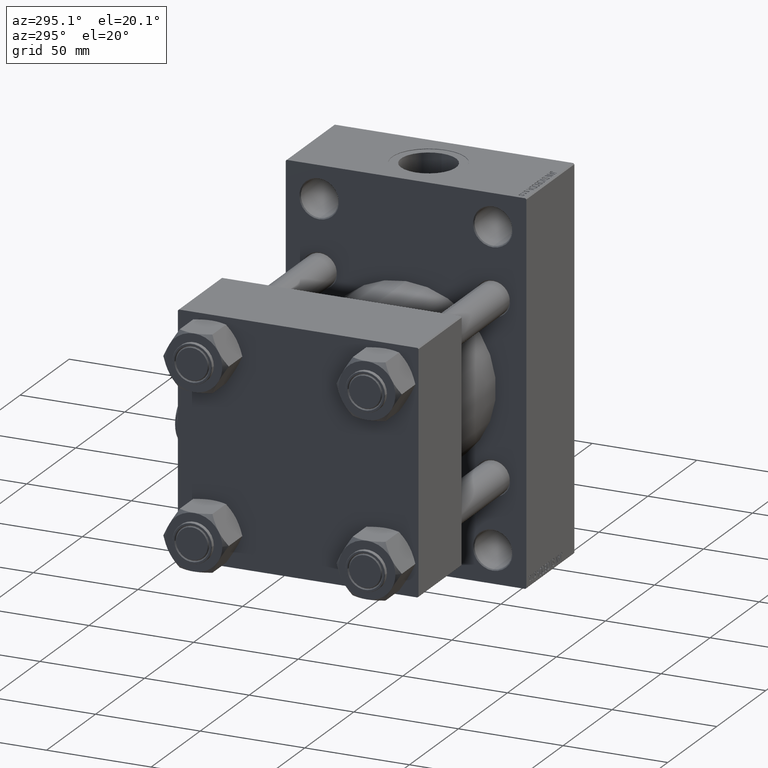
[diagram: clean part render]
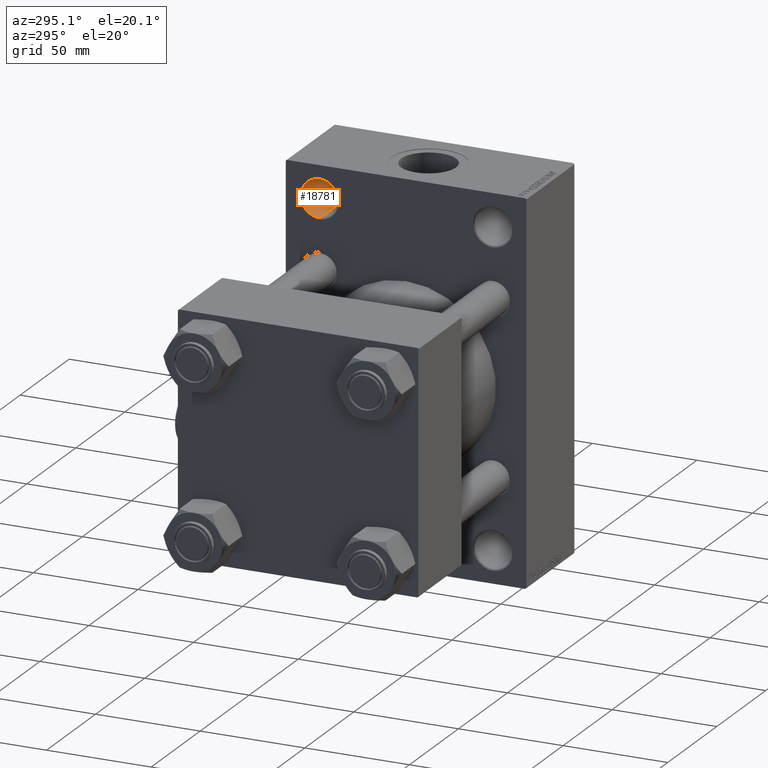
[diagram: same view with one face highlighted and labeled with its STEP entity id]
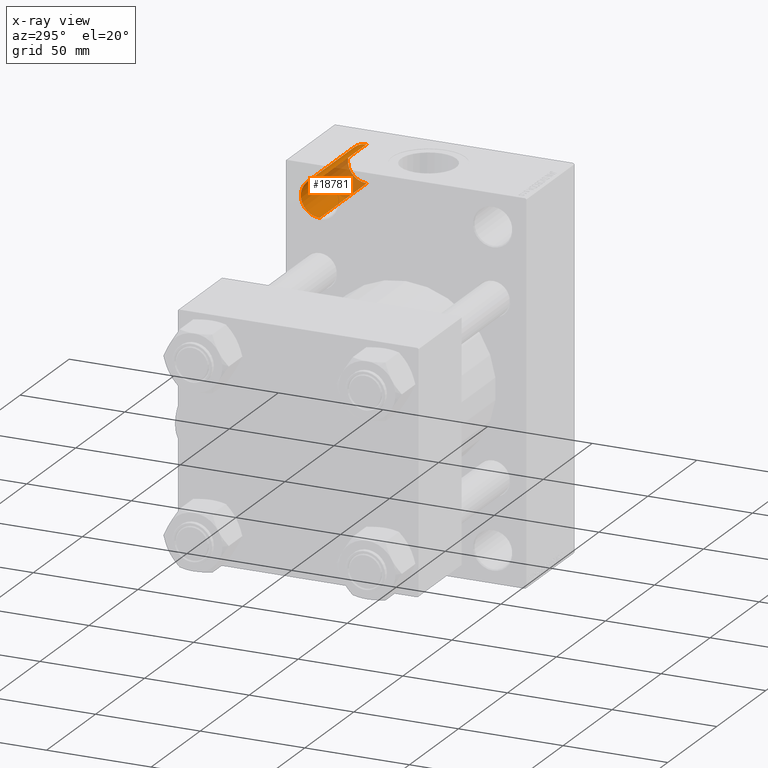
[diagram: x-ray of the same camera — body ghosted, the highlighted face saturated]
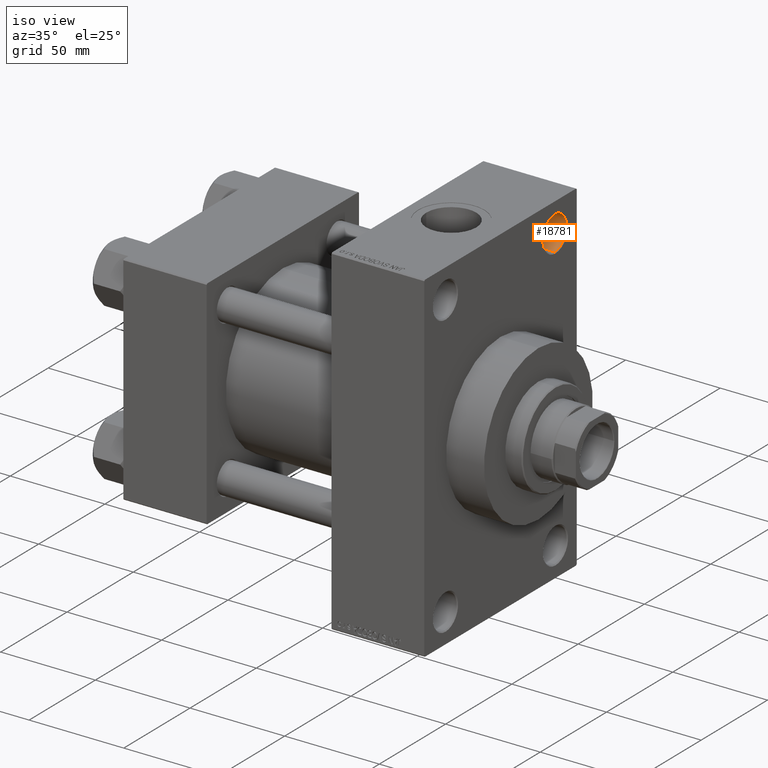
[diagram: same view with one face highlighted and labeled with its STEP entity id]
A machine part, auxiliary view. The second image highlights one B-rep face of the part: STEP entity #18781.
The next image is the same camera in x-ray: the body ghosted, the highlighted face saturated — about 35% of this face is hidden behind the body in this view.
A second angle (iso view) of the same face is appended — the face is thin or edge-on in the first view.
In plain terms, the highlighted cylindrical surface (edge-blend (fillet) strip) has radius 9 mm, axis along (1, 0, 0).
Its self-contained STEP definition (entity closure, byte-faithful):
#2373 = VERTEX_POINT ( 'NONE', #23613 ) ;
#2575 = VECTOR ( 'NONE', #40294, 1000.000000000000000 ) ;
#2923 = ORIENTED_EDGE ( 'NONE', *, *, #43664, .T. ) ;
#3200 = VECTOR ( 'NONE', #29237, 1000.000000000000000 ) ;
#4437 = ORIENTED_EDGE ( 'NONE', *, *, #29114, .T. ) ;
#4646 = VERTEX_POINT ( 'NONE', #21131 ) ;
#7259 = VERTEX_POINT ( 'NONE', #28790 ) ;
#7339 = VERTEX_POINT ( 'NONE', #31116 ) ;
#9502 = CARTESIAN_POINT ( 'NONE',  ( 110.5000000000000426, 41.50000000000000711, 74.50000000000001421 ) ) ;
#10537 = AXIS2_PLACEMENT_3D ( 'NONE', #33288, #40731, #11590 ) ;
#11590 = DIRECTION ( 'NONE',  ( 0.000000000000000000, 0.000000000000000000, 1.000000000000000000 ) ) ;
#12797 = CYLINDRICAL_SURFACE ( 'NONE', #41646, 8.999999999999994671 ) ;
#13187 = EDGE_CURVE ( 'NONE', #4646, #7339, #48004, .T. ) ;
#14638 = EDGE_LOOP ( 'NONE', ( #24075, #2923, #24286, #4437 ) ) ;
#16295 = CARTESIAN_POINT ( 'NONE',  ( 84.54415587728431092, 41.50000000000000711, 74.50000000000001421 ) ) ;
#18459 = CIRCLE ( 'NONE', #10537, 8.999999999999994671 ) ;
#18781 = ADVANCED_FACE ( 'NONE', ( #39133 ), #12797, .F. ) ;
#21131 = CARTESIAN_POINT ( 'NONE',  ( 110.5000000000000426, 41.50000000000000711, 65.50000000000001421 ) ) ;
#23613 = CARTESIAN_POINT ( 'NONE',  ( 158.4999999999999716, 41.50000000000000711, 83.50000000000000000 ) ) ;
#23951 = EDGE_CURVE ( 'NONE', #7259, #2373, #43644, .T. ) ;
#24075 = ORIENTED_EDGE ( 'NONE', *, *, #23951, .F. ) ;
#24286 = ORIENTED_EDGE ( 'NONE', *, *, #13187, .T. ) ;
#24663 = DIRECTION ( 'NONE',  ( -1.000000000000000000, -0.000000000000000000, -0.000000000000000000 ) ) ;
#27492 = DIRECTION ( 'NONE',  ( 1.000000000000000000, -0.000000000000000000, -0.000000000000000000 ) ) ;
#28790 = CARTESIAN_POINT ( 'NONE',  ( 110.5000000000000426, 41.50000000000000711, 83.50000000000000000 ) ) ;
#29114 = EDGE_CURVE ( 'NONE', #7339, #2373, #18459, .T. ) ;
#29176 = CIRCLE ( 'NONE', #40287, 8.999999999999994671 ) ;
#29237 = DIRECTION ( 'NONE',  ( 1.000000000000000000, -0.000000000000000000, -0.000000000000000000 ) ) ;
#31116 = CARTESIAN_POINT ( 'NONE',  ( 158.4999999999999716, 41.50000000000000711, 65.50000000000001421 ) ) ;
#33288 = CARTESIAN_POINT ( 'NONE',  ( 158.4999999999999716, 41.50000000000000711, 74.50000000000001421 ) ) ;
#35656 = DIRECTION ( 'NONE',  ( 0.000000000000000000, 0.000000000000000000, -1.000000000000000000 ) ) ;
#35844 = DIRECTION ( 'NONE',  ( 0.000000000000000000, 0.000000000000000000, 1.000000000000000000 ) ) ;
#36434 = CARTESIAN_POINT ( 'NONE',  ( 84.54415587728431092, 41.50000000000000711, 83.50000000000000000 ) ) ;
#39133 = FACE_OUTER_BOUND ( 'NONE', #14638, .T. ) ;
#40287 = AXIS2_PLACEMENT_3D ( 'NONE', #9502, #24663, #35844 ) ;
#40294 = DIRECTION ( 'NONE',  ( 1.000000000000000000, -0.000000000000000000, -0.000000000000000000 ) ) ;
#40731 = DIRECTION ( 'NONE',  ( 1.000000000000000000, 0.000000000000000000, 0.000000000000000000 ) ) ;
#41646 = AXIS2_PLACEMENT_3D ( 'NONE', #16295, #27492, #35656 ) ;
#43644 = LINE ( 'NONE', #36434, #3200 ) ;
#43664 = EDGE_CURVE ( 'NONE', #7259, #4646, #29176, .T. ) ;
#47269 = CARTESIAN_POINT ( 'NONE',  ( 84.54415587728431092, 41.50000000000000711, 65.50000000000001421 ) ) ;
#48004 = LINE ( 'NONE', #47269, #2575 ) ;